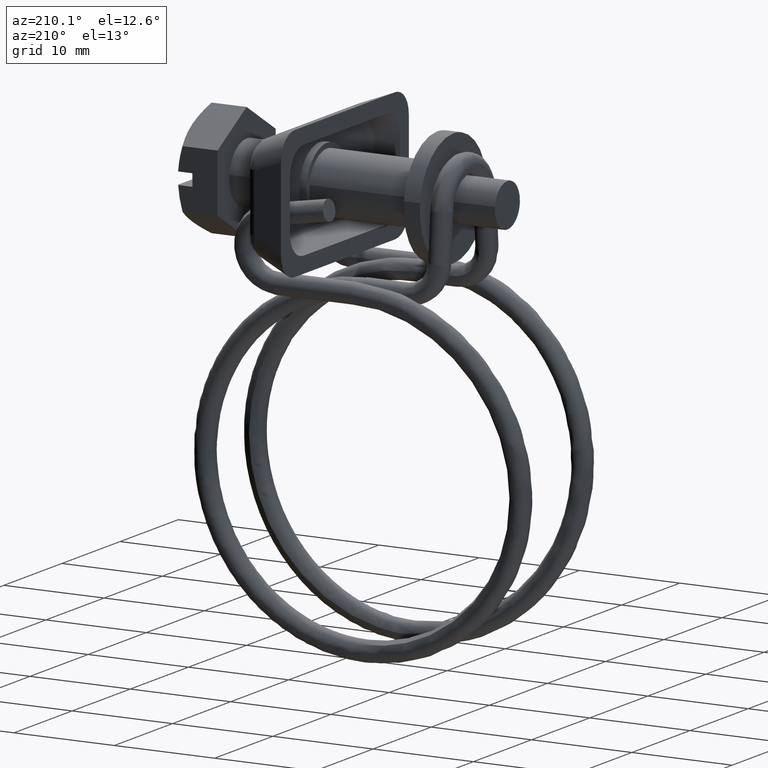
[diagram: clean part render]
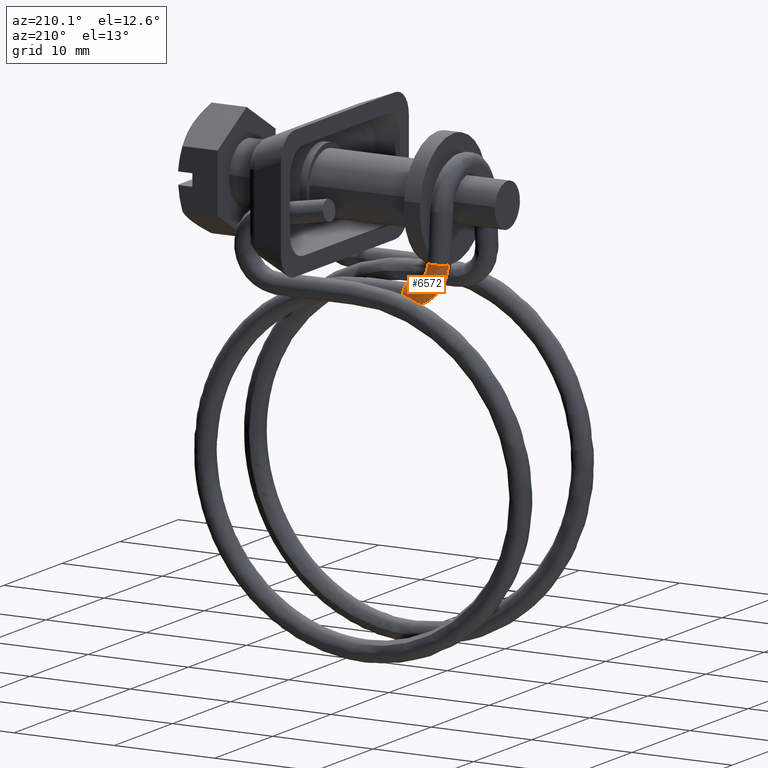
[diagram: same view with one face highlighted and labeled with its STEP entity id]
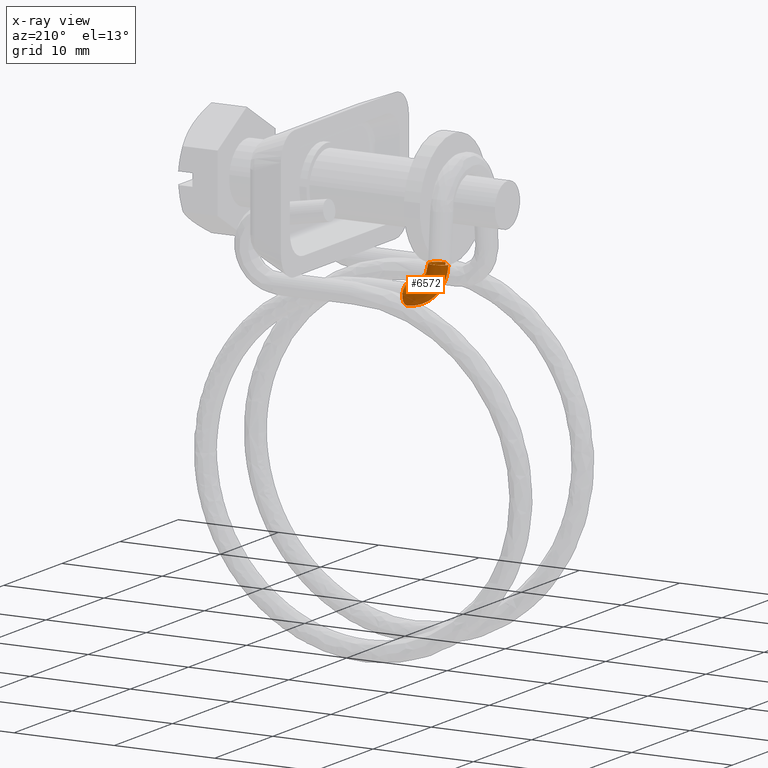
[diagram: x-ray of the same camera — body ghosted, the highlighted face saturated]
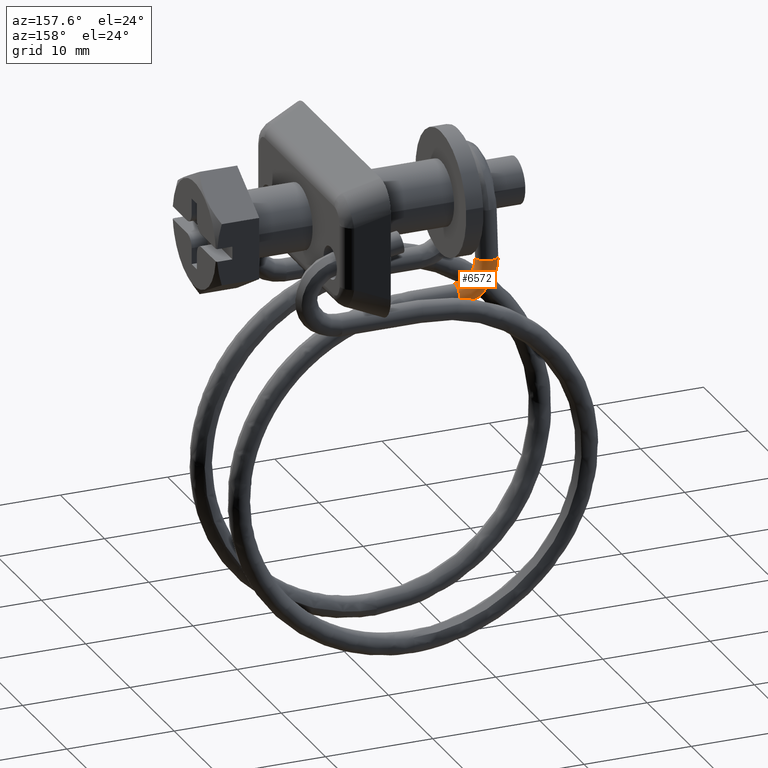
[diagram: same view with one face highlighted and labeled with its STEP entity id]
A machine part, auxiliary view. The second image highlights one B-rep face of the part: STEP entity #6572.
The next image is the same camera in x-ray: the body ghosted, the highlighted face saturated — about 0% of this face is hidden behind the body in this view.
A second angle (auxiliary view) of the same face is appended — the face is thin or edge-on in the first view.
In plain terms, the highlighted face is a freeform B-spline surface patch.
Its self-contained STEP definition (entity closure, byte-faithful):
#5258=CARTESIAN_POINT('',(-22.367139947736678,4.698938874883175,-4.808233543090071));
#5259=VERTEX_POINT('',#5258);
#5265=CARTESIAN_POINT('',(-22.582379500700629,4.245819002398156,-4.844672692172665));
#5266=VERTEX_POINT('',#5265);
#5267=CARTESIAN_POINT('',(-22.582379500700629,4.245819002398155,-4.844672692172665));
#5268=CARTESIAN_POINT('',(-22.533817514170220,4.500252001822301,-4.824211612090606));
#5269=CARTESIAN_POINT('',(-22.367139947736682,4.698938874883176,-4.808233543090071));
#5277=(BOUNDED_CURVE()B_SPLINE_CURVE(2,(#5267,#5268,#5269),.UNSPECIFIED.,.F.,.U.)B_SPLINE_CURVE_WITH_KNOTS((3,3),(0.045181202691630,0.123683178623319),.UNSPECIFIED.)CURVE()GEOMETRIC_REPRESENTATION_ITEM()RATIONAL_B_SPLINE_CURVE((0.913266495586753,0.854538515598598,0.853569642825949))REPRESENTATION_ITEM(''));
#5278=EDGE_CURVE('',#5266,#5259,#5277,.T.);
#5295=CARTESIAN_POINT('',(-21.612566052010241,3.062820010919950,-4.939807510224467));
#5296=VERTEX_POINT('',#5295);
#5310=CARTESIAN_POINT('',(-20.832860118633999,3.420107753814916,-4.911075022055662));
#5311=VERTEX_POINT('',#5310);
#5312=CARTESIAN_POINT('',(-20.832860118633999,3.420107753814916,-4.911075022055662));
#5313=CARTESIAN_POINT('',(-21.101854923286080,3.099454439302257,-4.936861430097778));
#5314=CARTESIAN_POINT('',(-21.519840451301970,3.065948908044465,-4.939555889383175));
#5315=CARTESIAN_POINT('',(-21.566130365627568,3.062238329406206,-4.939854287966654));
#5316=CARTESIAN_POINT('',(-21.612566052010244,3.062820010919950,-4.939807510224467));
#5324=(BOUNDED_CURVE()B_SPLINE_CURVE(2,(#5312,#5313,#5314,#5315,#5316),.UNSPECIFIED.,.F.,.U.)B_SPLINE_CURVE_WITH_KNOTS((3,2,3),(0.623683209847848,0.750000000000000,0.766108922893955),.UNSPECIFIED.)CURVE()GEOMETRIC_REPRESENTATION_ITEM()RATIONAL_B_SPLINE_CURVE((0.853569642055211,0.852010674968611,1.0,0.981127222887887,0.964686606666125))REPRESENTATION_ITEM(''));
#5325=EDGE_CURVE('',#5311,#5296,#5324,.T.);
#5431=CARTESIAN_POINT('',(-20.603217954237770,4.139424952773903,-4.853228725246725));
#5432=VERTEX_POINT('',#5431);
#5433=CARTESIAN_POINT('',(-20.603217954237770,4.139424952773903,-4.853228725246725));
#5434=CARTESIAN_POINT('',(-20.570423827124557,3.732943040093949,-4.885917326885027));
#5435=CARTESIAN_POINT('',(-20.832860118633999,3.420107753814916,-4.911075022055662));
#5443=(BOUNDED_CURVE()B_SPLINE_CURVE(2,(#5433,#5434,#5435),.UNSPECIFIED.,.F.,.U.)B_SPLINE_CURVE_WITH_KNOTS((3,3),(0.500000000000000,0.623683209847847),.UNSPECIFIED.)CURVE()GEOMETRIC_REPRESENTATION_ITEM()RATIONAL_B_SPLINE_CURVE((1.0,0.855096106217938,0.853569642055211))REPRESENTATION_ITEM(''));
#5444=EDGE_CURVE('',#5432,#5311,#5443,.T.);
#5446=CARTESIAN_POINT('',(-22.367139947736675,4.698938874883176,-4.808233543090070));
#5447=CARTESIAN_POINT('',(-22.098145197981960,5.019592258791927,-4.782447129451261));
#5448=CARTESIAN_POINT('',(-21.680159548696729,5.053097799770615,-4.779752669384126));
#5449=CARTESIAN_POINT('',(-20.683377502935155,5.132999398636978,-4.773327115247199));
#5450=CARTESIAN_POINT('',(-20.603217954237770,4.139424952773903,-4.853228725246725));
#5458=(BOUNDED_CURVE()B_SPLINE_CURVE(2,(#5446,#5447,#5448,#5449,#5450),.UNSPECIFIED.,.F.,.U.)B_SPLINE_CURVE_WITH_KNOTS((3,2,3),(0.123683178623319,0.250000000000000,0.500000000000000),.UNSPECIFIED.)CURVE()GEOMETRIC_REPRESENTATION_ITEM()RATIONAL_B_SPLINE_CURVE((0.853569642825949,0.852010638386800,1.0,0.707106781186548,1.0))REPRESENTATION_ITEM(''));
#5459=EDGE_CURVE('',#5259,#5432,#5458,.T.);
#5491=CARTESIAN_POINT('',(-18.600000549267460,4.565044746089301,-8.814237079911269));
#5492=VERTEX_POINT('',#5491);
#5493=CARTESIAN_POINT('',(-18.600000536176889,4.792994380532969,-8.720034044024850));
#5494=VERTEX_POINT('',#5493);
#5495=CARTESIAN_POINT('',(-18.600000549267467,4.565044746089301,-8.814237079911269));
#5496=CARTESIAN_POINT('',(-18.600000544689209,4.684872993892071,-8.781299514821024));
#5497=CARTESIAN_POINT('',(-18.600000536176882,4.792994380532969,-8.720034044024850));
#5505=(BOUNDED_CURVE()B_SPLINE_CURVE(2,(#5495,#5496,#5497),.UNSPECIFIED.,.F.,.U.)B_SPLINE_CURVE_WITH_KNOTS((3,3),(0.045181202694883,0.084030447835668),.UNSPECIFIED.)CURVE()GEOMETRIC_REPRESENTATION_ITEM()RATIONAL_B_SPLINE_CURVE((0.913266495581887,0.884203052732049,0.869285310569638))REPRESENTATION_ITEM(''));
#5506=EDGE_CURVE('',#5492,#5494,#5505,.T.);
#5592=CARTESIAN_POINT('',(-18.600000411688029,5.299659324974465,-7.823823468334541));
#5593=VERTEX_POINT('',#5592);
#5599=CARTESIAN_POINT('',(-18.600000276434709,4.300001999999545,-6.850000416666620));
#5600=VERTEX_POINT('',#5599);
#5601=CARTESIAN_POINT('',(-18.600000411688026,5.299659324974465,-7.823823468334541));
#5602=CARTESIAN_POINT('',(-18.600000276434827,5.274158870874204,-6.850000416666619));
#5603=CARTESIAN_POINT('',(-18.600000276434709,4.300001999999545,-6.850000416666620));
#5611=(BOUNDED_CURVE()B_SPLINE_CURVE(2,(#5601,#5602,#5603),.UNSPECIFIED.,.F.,.U.)B_SPLINE_CURVE_WITH_KNOTS((3,3),(0.254603306667444,0.500000000000000),.UNSPECIFIED.)CURVE()GEOMETRIC_REPRESENTATION_ITEM()RATIONAL_B_SPLINE_CURVE((0.989412390629237,0.712499890414600,1.0))REPRESENTATION_ITEM(''));
#5612=EDGE_CURVE('',#5593,#5600,#5611,.T.);
#5614=CARTESIAN_POINT('',(-18.600000428576099,3.304305945271802,-7.942679252436195));
#5615=VERTEX_POINT('',#5614);
#5616=CARTESIAN_POINT('',(-18.600000276434709,4.300001999999545,-6.850000416666620));
#5617=CARTESIAN_POINT('',(-18.600000276434606,3.300001999999544,-6.850000416666620));
#5618=CARTESIAN_POINT('',(-18.600000415323489,3.300001999999545,-7.850000416666610));
#5619=CARTESIAN_POINT('',(-18.600000421773395,3.300001999999545,-7.896439771830448));
#5620=CARTESIAN_POINT('',(-18.600000428576099,3.304305945271802,-7.942679252436195));
#5628=(BOUNDED_CURVE()B_SPLINE_CURVE(2,(#5616,#5617,#5618,#5619,#5620),.UNSPECIFIED.,.F.,.U.)B_SPLINE_CURVE_WITH_KNOTS((3,2,3),(0.500000000000000,0.750000000000000,0.766108923275834),.UNSPECIFIED.)CURVE()GEOMETRIC_REPRESENTATION_ITEM()RATIONAL_B_SPLINE_CURVE((1.0,0.707106781186548,1.0,0.981127222440488,0.964686605886641))REPRESENTATION_ITEM(''));
#5629=EDGE_CURVE('',#5600,#5615,#5628,.T.);
#5676=CARTESIAN_POINT('',(-18.600000536176886,4.792994380532969,-8.720034044024850));
#5677=CARTESIAN_POINT('',(-18.600000496260492,5.300001999999545,-8.432745271012871));
#5678=CARTESIAN_POINT('',(-18.600000415323709,5.300001999999545,-7.850000416666610));
#5679=CARTESIAN_POINT('',(-18.600000413505562,5.300001999999545,-7.836909699557644));
#5680=CARTESIAN_POINT('',(-18.600000411688029,5.299659324974465,-7.823823468334541));
#5688=(BOUNDED_CURVE()B_SPLINE_CURVE(2,(#5676,#5677,#5678,#5679,#5680),.UNSPECIFIED.,.F.,.U.)B_SPLINE_CURVE_WITH_KNOTS((3,2,3),(0.084030447835668,0.250000000000000,0.254603306667444),.UNSPECIFIED.)CURVE()GEOMETRIC_REPRESENTATION_ITEM()RATIONAL_B_SPLINE_CURVE((0.869285310569638,0.805554574566246,1.0,0.994606890771948,0.989412390629237))REPRESENTATION_ITEM(''));
#5689=EDGE_CURVE('',#5494,#5593,#5688,.T.);
#6507=CARTESIAN_POINT('',(-18.324560781327587,4.564280283397203,-8.804731044561169));
#6508=CARTESIAN_POINT('',(-22.892774476165798,4.589668196202156,-9.120428446678002));
#6509=CARTESIAN_POINT('',(-22.572635291205739,4.223501318203084,-4.567152869992927));
#6510=CARTESIAN_POINT('',(-18.335397564618944,5.372659140478516,-8.582911690626222));
#6511=CARTESIAN_POINT('',(-22.723880920628428,5.397048199360383,-8.886188395104956));
#6512=CARTESIAN_POINT('',(-22.416337189390301,5.045287673919857,-4.512055436704760));
#6513=CARTESIAN_POINT('',(-18.393375665640960,5.295124583264705,-7.750190506514846));
#6514=CARTESIAN_POINT('',(-21.820280790955049,5.314169657406184,-7.987015033043663));
#6515=CARTESIAN_POINT('',(-21.580124203054389,5.039484794840945,-4.571315932027286));
#6516=CARTESIAN_POINT('',(-18.462534687133804,5.202637695728479,-6.756881287097241));
#6517=CARTESIAN_POINT('',(-20.742423812416309,5.215308212079988,-6.914438512316234));
#6518=CARTESIAN_POINT('',(-20.582649796767264,5.032562846176456,-4.642004654104095));
#6519=CARTESIAN_POINT('',(-18.461665574623115,4.206939228611571,-6.849530125322447));
#6520=CARTESIAN_POINT('',(-20.755969286824055,4.219689854235598,-7.008083505263331));
#6521=CARTESIAN_POINT('',(-20.595185100807374,4.035789081724111,-4.721282196019330));
#6522=CARTESIAN_POINT('',(-18.460796462112434,3.211240761494662,-6.942178963547655));
#6523=CARTESIAN_POINT('',(-20.769514761231800,3.224071496391209,-7.101728498210433));
#6524=CARTESIAN_POINT('',(-20.607720404847466,3.039015317271765,-4.800559737934567));
#6525=CARTESIAN_POINT('',(-18.391637440619601,3.303727649030887,-7.935488182965259));
#6526=CARTESIAN_POINT('',(-21.847371739770548,3.322932941717405,-8.174305018937860));
#6527=CARTESIAN_POINT('',(-21.605194811134588,3.045937265936254,-4.729871015857760));
#6535=(BOUNDED_SURFACE()B_SPLINE_SURFACE(2,2,((#6507,#6510,#6513,#6516,#6519,#6522,#6525),(#6508,#6511,#6514,#6517,#6520,#6523,#6526),(#6509,#6512,#6515,#6518,#6521,#6524,#6527)),.UNSPECIFIED.,.F.,.F.,.U.)B_SPLINE_SURFACE_WITH_KNOTS((3,3),(3,2,2,3),(0.0,7.257327434992606),(0.0,1.458031739553298,3.114885989045682,4.771740238538065),.UNSPECIFIED.)GEOMETRIC_REPRESENTATION_ITEM()RATIONAL_B_SPLINE_SURFACE(((0.869978428024518,0.688324007481973,0.927342981880059,0.655730510973143,0.927342981880059,0.655730510973143,0.927342981880059),(0.567738532595208,0.449192818315323,0.605174021315171,0.427922654269890,0.605174021315171,0.427922654269890,0.605174021315171),(0.860367196128517,0.680719633117753,0.917098005500337,0.648486218701946,0.917098005500337,0.648486218701946,0.917098005500337)))REPRESENTATION_ITEM('')SURFACE());
#6536=ORIENTED_EDGE('',*,*,#5278,.T.);
#6537=ORIENTED_EDGE('',*,*,#5459,.T.);
#6538=ORIENTED_EDGE('',*,*,#5444,.T.);
#6539=ORIENTED_EDGE('',*,*,#5325,.T.);
#6540=CARTESIAN_POINT('',(-18.600000428576099,3.304305945271802,-7.942679252436195));
#6541=CARTESIAN_POINT('',(-21.612566050772156,3.304305945014575,-7.942678831161434));
#6542=CARTESIAN_POINT('',(-21.612566052010248,3.062820010919950,-4.939807510224467));
#6550=(BOUNDED_CURVE()B_SPLINE_CURVE(2,(#6540,#6541,#6542),.UNSPECIFIED.,.F.,.U.)B_SPLINE_CURVE_WITH_KNOTS((3,3),(-1.757828371720487,-0.268636015001274),.UNSPECIFIED.)CURVE()GEOMETRIC_REPRESENTATION_ITEM()RATIONAL_B_SPLINE_CURVE((0.899389214095638,0.632662528242202,0.890074759231123))REPRESENTATION_ITEM(''));
#6551=EDGE_CURVE('',#5615,#5296,#6550,.T.);
#6552=ORIENTED_EDGE('',*,*,#6551,.F.);
#6553=ORIENTED_EDGE('',*,*,#5629,.F.);
#6554=ORIENTED_EDGE('',*,*,#5612,.F.);
#6555=ORIENTED_EDGE('',*,*,#5689,.F.);
#6556=ORIENTED_EDGE('',*,*,#5506,.F.);
#6557=CARTESIAN_POINT('',(-18.600000549267470,4.565044746089302,-8.814237079911269));
#6558=CARTESIAN_POINT('',(-22.582379500620696,4.565044746075754,-8.814236526763423));
#6559=CARTESIAN_POINT('',(-22.582379500700636,4.245819002398156,-4.844672692172665));
#6567=(BOUNDED_CURVE()B_SPLINE_CURVE(2,(#6557,#6558,#6559),.UNSPECIFIED.,.F.,.U.)B_SPLINE_CURVE_WITH_KNOTS((3,3),(-1.757828371976035,-0.268636014937864),.UNSPECIFIED.)CURVE()GEOMETRIC_REPRESENTATION_ITEM()RATIONAL_B_SPLINE_CURVE((0.843753853783917,0.593526626605826,0.835015582162909))REPRESENTATION_ITEM(''));
#6568=EDGE_CURVE('',#5492,#5266,#6567,.T.);
#6569=ORIENTED_EDGE('',*,*,#6568,.T.);
#6570=EDGE_LOOP('',(#6536,#6537,#6538,#6539,#6552,#6553,#6554,#6555,#6556,#6569));
#6571=FACE_OUTER_BOUND('',#6570,.T.);
#6572=ADVANCED_FACE('',(#6571),#6535,.T.);